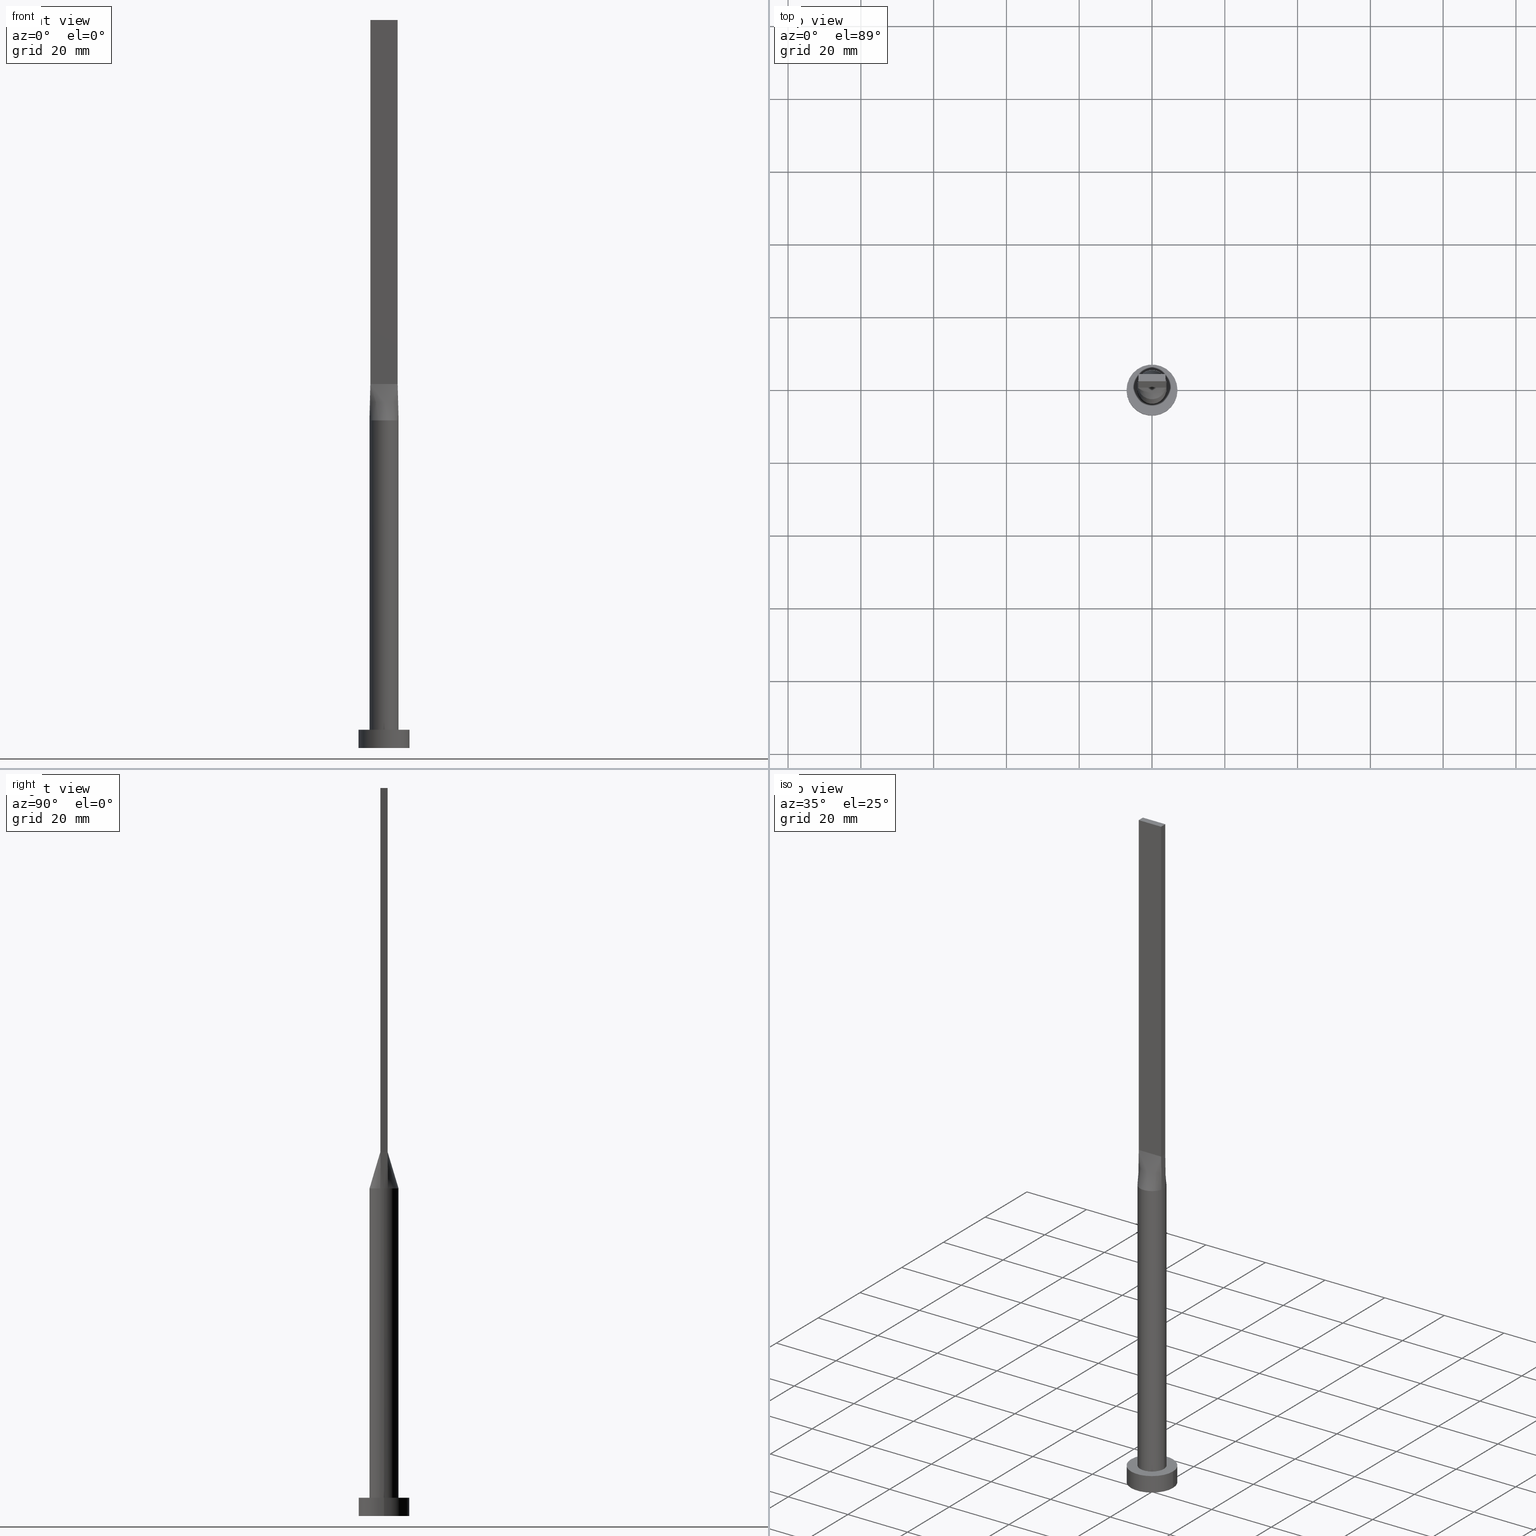
[diagram: canonical four-view strip — front | top / right | iso, engineering-drawing reading convention]
A machine part, canonical four-view strip (front | top / right | iso — engineering-drawing reading convention). The complete STEP part file that produces these views, byte-faithful:
ISO-10303-21;
HEADER;
FILE_DESCRIPTION (( 'STEP AP203' ),
    '1' );
FILE_NAME ('5dbc.STEP',
    '2023-02-13T09:35:49',
    ( '' ),
    ( '' ),
    'SwSTEP 2.0',
    'SolidWorks 2019',
    '' );
FILE_SCHEMA (( 'CONFIG_CONTROL_DESIGN' ));
ENDSEC;

DATA;
#1 = CARTESIAN_POINT ( 'NONE',  ( 1.562500000000001332, -0.9999999999999995559, 100.0000000000000000 ) ) ;
#2 = ORIENTED_EDGE ( 'NONE', *, *, #393, .F. ) ;
#3 = CC_DESIGN_PERSON_AND_ORGANIZATION_ASSIGNMENT ( #258, #32, ( #243 ) ) ;
#4 = CC_DESIGN_APPROVAL ( #565, ( #577 ) ) ;
#5 = CARTESIAN_POINT ( 'NONE',  ( -0.6249999999999982236, -0.9999999999999993339, 100.0000000000000142 ) ) ;
#6 = CARTESIAN_POINT ( 'NONE',  ( -3.437500000000000000, 1.000000000000000000, 100.0000000000000000 ) ) ;
#7 = CARTESIAN_POINT ( 'NONE',  ( 4.000000000000000000, -0.3494497975066829798, 90.00000000000001421 ) ) ;
#8 = CARTESIAN_POINT ( 'NONE',  ( 3.865244591400370577, -1.030732999276501527, 90.00000000000001421 ) ) ;
#9 = CARTESIAN_POINT ( 'NONE',  ( 3.653499896451231521, 1.673258289339057958, 90.00000000000001421 ) ) ;
#10 = CARTESIAN_POINT ( 'NONE',  ( 3.437499999999999556, 1.000000000000000000, 100.0000000000000000 ) ) ;
#11 = CARTESIAN_POINT ( 'NONE',  ( -3.267840578657194239, 2.338604872288698289, 90.00000000000000000 ) ) ;
#12 = AXIS2_PLACEMENT_3D ( 'NONE', #299, #159, #514 ) ;
#13 = EDGE_CURVE ( 'NONE', #459, #42, #229, .T. ) ;
#14 = DIRECTION ( 'NONE',  ( -1.000000000000000000, 0.000000000000000000, 0.000000000000000000 ) ) ;
#15 = ORIENTED_EDGE ( 'NONE', *, *, #520, .F. ) ;
#16 = CARTESIAN_POINT ( 'NONE',  ( 3.999999999999999112, 0.3494497975066819251, 90.00000000000001421 ) ) ;
#17 = CARTESIAN_POINT ( 'NONE',  ( 1.023074425454087999, 3.898373771260456255, 90.00000000000001421 ) ) ;
#18 = EDGE_LOOP ( 'NONE', ( #81, #169, #391, #218 ) ) ;
#19 = MECHANICAL_CONTEXT ( 'NONE', #477, 'mechanical' ) ;
#20 = DIRECTION ( 'NONE',  ( -1.000000000000000000, 0.000000000000000000, 0.000000000000000000 ) ) ;
#21 = CC_DESIGN_DATE_AND_TIME_ASSIGNMENT ( #521, #120, ( #577 ) ) ;
#22 = DIRECTION ( 'NONE',  ( -0.000000000000000000, -0.000000000000000000, -1.000000000000000000 ) ) ;
#23 = DIRECTION ( 'NONE',  ( -0.000000000000000000, -0.000000000000000000, -1.000000000000000000 ) ) ;
#24 = APPROVAL_PERSON_ORGANIZATION ( #244, #268, #109 ) ;
#25 = LINE ( 'NONE', #383, #283 ) ;
#26 = DIRECTION ( 'NONE',  ( 8.673617379884035472E-17, 1.000000000000000000, -0.000000000000000000 ) ) ;
#27 = ORIENTED_EDGE ( 'NONE', *, *, #265, .T. ) ;
#28 = LINE ( 'NONE', #290, #60 ) ;
#29 = EDGE_CURVE ( 'NONE', #459, #220, #182, .T. ) ;
#30 = ORIENTED_EDGE ( 'NONE', *, *, #486, .F. ) ;
#31 = CC_DESIGN_APPROVAL ( #571, ( #86 ) ) ;
#32 = PERSON_AND_ORGANIZATION_ROLE ( 'design_supplier' ) ;
#33 = FACE_OUTER_BOUND ( 'NONE', #58, .T. ) ;
#34 = EDGE_LOOP ( 'NONE', ( #419, #519 ) ) ;
#35 = CARTESIAN_POINT ( 'NONE',  ( 0.000000000000000000, 0.000000000000000000, 200.0000000000000000 ) ) ;
#36 = CARTESIAN_POINT ( 'NONE',  ( 0.000000000000000000, 0.000000000000000000, 0.000000000000000000 ) ) ;
#37 = EDGE_CURVE ( 'NONE', #479, #254, #356, .T. ) ;
#38 = DIRECTION ( 'NONE',  ( 0.01149316269309400701, -0.003064843384824952107, 0.9999292544707033548 ) ) ;
#39 = VERTEX_POINT ( 'NONE', #175 ) ;
#40 = CIRCLE ( 'NONE', #415, 4.000000000000000000 ) ;
#41 = DIRECTION ( 'NONE',  ( 0.000000000000000000, 0.000000000000000000, 1.000000000000000000 ) ) ;
#42 = VERTEX_POINT ( 'NONE', #354 ) ;
#43 = CARTESIAN_POINT ( 'NONE',  ( -3.864939758404985604, -1.030650602241328206, 90.00000000000001421 ) ) ;
#44 = ORIENTED_EDGE ( 'NONE', *, *, #261, .T. ) ;
#45 = CARTESIAN_POINT ( 'NONE',  ( 1.250000000000001554, -0.9999999999999995559, 100.0000000000000000 ) ) ;
#46 = CARTESIAN_POINT ( 'NONE',  ( 0.6249999999999993339, 1.000000000000000000, 100.0000000000000142 ) ) ;
#47 = ADVANCED_FACE ( 'NONE', ( #530 ), #128, .T. ) ;
#48 = AXIS2_PLACEMENT_3D ( 'NONE', #313, #41, #311 ) ;
#49 = DIRECTION ( 'NONE',  ( 1.000000000000000000, 0.000000000000000000, 0.000000000000000000 ) ) ;
#50 = CARTESIAN_POINT ( 'NONE',  ( 3.750000000000000000, 1.000000000000000000, 200.0000000000000000 ) ) ;
#51 = CARTESIAN_POINT ( 'NONE',  ( 2.346407003458400808, 3.270103945996944983, 89.99999999999998579 ) ) ;
#52 = CARTESIAN_POINT ( 'NONE',  ( -1.023074425454088221, 3.898373771260455811, 90.00000000000001421 ) ) ;
#53 = AXIS2_PLACEMENT_3D ( 'NONE', #36, #395, #575 ) ;
#54 = ORIENTED_EDGE ( 'NONE', *, *, #250, .T. ) ;
#55 = ADVANCED_FACE ( 'NONE', ( #454 ), #97, .F. ) ;
#56 = CARTESIAN_POINT ( 'NONE',  ( -4.000000000000000000, -2.459132308497027359E-16, 90.00000000000001421 ) ) ;
#57 = CARTESIAN_POINT ( 'NONE',  ( 3.009488128496037085, 2.672487015486669115, 90.00000000000000000 ) ) ;
#58 = EDGE_LOOP ( 'NONE', ( #216, #537, #312, #476, #445 ) ) ;
#59 = ADVANCED_FACE ( 'NONE', ( #548 ), #373, .F. ) ;
#60 = VECTOR ( 'NONE', #468, 1000.000000000000114 ) ;
#61 = FACE_OUTER_BOUND ( 'NONE', #399, .T. ) ;
#62 = VERTEX_POINT ( 'NONE', #501 ) ;
#63 = DIRECTION ( 'NONE',  ( -1.000000000000000000, 0.000000000000000000, 0.000000000000000000 ) ) ;
#64 = VERTEX_POINT ( 'NONE', #8 ) ;
#65 = CARTESIAN_POINT ( 'NONE',  ( 3.749999999999999556, 0.3333333333333336479, 100.0000000000000000 ) ) ;
#66 = DIRECTION ( 'NONE',  ( 0.000000000000000000, 0.000000000000000000, 1.000000000000000000 ) ) ;
#67 = DATE_TIME_ROLE ( 'creation_date' ) ;
#68 = LINE ( 'NONE', #245, #480 ) ;
#69 = LINE ( 'NONE', #378, #305 ) ;
#70 = AXIS2_PLACEMENT_3D ( 'NONE', #145, #102, #237 ) ;
#71 = APPROVAL_DATE_TIME ( #172, #565 ) ;
#72 = LINE ( 'NONE', #294, #409 ) ;
#73 = CARTESIAN_POINT ( 'NONE',  ( -3.750000000000000000, 1.000000000000000000, 100.0000000000000000 ) ) ;
#74 = ORIENTED_EDGE ( 'NONE', *, *, #199, .T. ) ;
#75 = CIRCLE ( 'NONE', #516, 4.000000000000000000 ) ;
#76 = DIRECTION ( 'NONE',  ( -1.000000000000000000, -0.000000000000000000, -0.000000000000000000 ) ) ;
#77 = EDGE_CURVE ( 'NONE', #308, #510, #449, .T. ) ;
#78 = DIRECTION ( 'NONE',  ( 1.000000000000000000, 0.000000000000000000, 0.000000000000000000 ) ) ;
#79 = CIRCLE ( 'NONE', #348, 4.000000000000000000 ) ;
#80 = CARTESIAN_POINT ( 'NONE',  ( 4.000000000000000000, -1.256865613583667397E-17, 90.00000000000001421 ) ) ;
#81 = ORIENTED_EDGE ( 'NONE', *, *, #496, .T. ) ;
#82 = EDGE_CURVE ( 'NONE', #39, #180, #151, .T. ) ;
#83 = CARTESIAN_POINT ( 'NONE',  ( -2.499999999999998668, -0.9999999999999991118, 100.0000000000000000 ) ) ;
#84 = EDGE_LOOP ( 'NONE', ( #416, #119, #171, #44 ) ) ;
#85 = CIRCLE ( 'NONE', #224, 4.000000000000000000 ) ;
#86 = PRODUCT_DEFINITION ( 'NEZN�M�', '', #243, #380 ) ;
#87 = CARTESIAN_POINT ( 'NONE',  ( -3.750000000000000000, -0.9999999999999991118, 100.0000000000000000 ) ) ;
#88 = EDGE_LOOP ( 'NONE', ( #267, #191 ) ) ;
#89 = CARTESIAN_POINT ( 'NONE',  ( -3.865236553917747120, 1.030730781768519622, 90.00000000000001421 ) ) ;
#90 = CARTESIAN_POINT ( 'NONE',  ( -3.125000000000000000, 1.000000000000000000, 100.0000000000000000 ) ) ;
#91 = AXIS2_PLACEMENT_3D ( 'NONE', #452, #165, #337 ) ;
#92 = CARTESIAN_POINT ( 'NONE',  ( 3.953459813730019423, -0.6987003947724502728, 89.99999999999998579 ) ) ;
#93 = ADVANCED_FACE ( 'NONE', ( #61 ), #352, .T. ) ;
#94 = FACE_OUTER_BOUND ( 'NONE', #34, .T. ) ;
#95 =( GEOMETRIC_REPRESENTATION_CONTEXT ( 3 ) GLOBAL_UNCERTAINTY_ASSIGNED_CONTEXT ( ( #555 ) ) GLOBAL_UNIT_ASSIGNED_CONTEXT ( ( #158, #552, #201 ) ) REPRESENTATION_CONTEXT ( 'NONE', 'WORKASPACE' ) );
#96 = CARTESIAN_POINT ( 'NONE',  ( -0.3124999999999982236, -0.9999999999999993339, 100.0000000000000142 ) ) ;
#97 = PLANE ( 'NONE',  #328 ) ;
#98 = CARTESIAN_POINT ( 'NONE',  ( 1.940702937457743582, 3.532374760555930582, 90.00000000000001421 ) ) ;
#99 = DIRECTION ( 'NONE',  ( 0.000000000000000000, -1.000000000000000000, 0.000000000000000000 ) ) ;
#100 = ORIENTED_EDGE ( 'NONE', *, *, #493, .T. ) ;
#101 = CARTESIAN_POINT ( 'NONE',  ( -1.023074425454088221, 3.898373771260455811, 90.00000000000001421 ) ) ;
#102 = DIRECTION ( 'NONE',  ( -0.000000000000000000, -0.000000000000000000, -1.000000000000000000 ) ) ;
#103 = EDGE_LOOP ( 'NONE', ( #579, #371, #534, #288 ) ) ;
#104 = CARTESIAN_POINT ( 'NONE',  ( 3.953459813730020311, 0.6987003947724492736, 90.00000000000002842 ) ) ;
#105 = VECTOR ( 'NONE', #563, 1000.000000000000000 ) ;
#106 = B_SPLINE_SURFACE_WITH_KNOTS ( 'NONE', 3, 1, ( 
 ( #43, #87 ),
 ( #217, #488 ),
 ( #259, #388 ),
 ( #353, #83 ),
 ( #437, #529 ),
 ( #170, #127 ),
 ( #350, #124 ),
 ( #499, #5 ),
 ( #363, #96 ),
 ( #275, #411 ),
 ( #184, #460 ),
 ( #272, #45 ),
 ( #453, #1 ),
 ( #278, #539 ),
 ( #143, #413 ),
 ( #544, #321 ),
 ( #457, #402 ),
 ( #450, #181 ) ),
 .UNSPECIFIED., .F., .F., .F.,
 ( 4, 2, 2, 2, 2, 2, 2, 2, 4 ),
 ( 2, 2 ),
 ( 0.000000000000000000, 0.1250000000000000000, 0.2500000000000000000, 0.3750000000000000000, 0.5000000000000000000, 0.6250000000000000000, 0.7500000000000000000, 0.8750000000000000000, 1.000000000000000000 ),
 ( 0.000000000000000000, 1.000000000000000000 ),
 .UNSPECIFIED. ) ;
#107 = DIRECTION ( 'NONE',  ( 0.000000000000000000, 0.000000000000000000, 1.000000000000000000 ) ) ;
#108 = EDGE_LOOP ( 'NONE', ( #15, #122, #436, #532, #314, #27 ) ) ;
#109 = APPROVAL_ROLE ( '' ) ;
#110 = DIRECTION ( 'NONE',  ( 1.000000000000000000, 0.000000000000000000, 0.000000000000000000 ) ) ;
#111 = AXIS2_PLACEMENT_3D ( 'NONE', #50, #99, #148 ) ;
#112 = COORDINATED_UNIVERSAL_TIME_OFFSET ( 1, 0, .AHEAD. ) ;
#113 = CARTESIAN_POINT ( 'NONE',  ( 0.000000000000000000, 0.000000000000000000, 90.00000000000001421 ) ) ;
#114 = APPLICATION_PROTOCOL_DEFINITION ( 'international standard', 'config_control_design', 1994, #277 ) ;
#115 = LINE ( 'NONE', #343, #341 ) ;
#116 = VECTOR ( 'NONE', #346, 1000.000000000000000 ) ;
#117 = CARTESIAN_POINT ( 'NONE',  ( -7.000000000000000000, 0.000000000000000000, 5.000000000000000000 ) ) ;
#118 = CARTESIAN_POINT ( 'NONE',  ( 0.000000000000000000, 0.000000000000000000, 5.000000000000000000 ) ) ;
#119 = ORIENTED_EDGE ( 'NONE', *, *, #558, .F. ) ;
#120 = DATE_TIME_ROLE ( 'classification_date' ) ;
#121 = CARTESIAN_POINT ( 'NONE',  ( -3.953459813730020311, -0.6987003947724488295, 90.00000000000002842 ) ) ;
#122 = ORIENTED_EDGE ( 'NONE', *, *, #291, .F. ) ;
#123 = APPROVAL_ROLE ( '' ) ;
#124 = CARTESIAN_POINT ( 'NONE',  ( -1.249999999999998446, -0.9999999999999993339, 100.0000000000000142 ) ) ;
#125 = LOCAL_TIME ( 10, 35, 49.00000000000000000, #507 ) ;
#126 = EDGE_LOOP ( 'NONE', ( #131, #167, #153, #483 ) ) ;
#127 = CARTESIAN_POINT ( 'NONE',  ( -1.562499999999998890, -0.9999999999999993339, 100.0000000000000142 ) ) ;
#128 = CYLINDRICAL_SURFACE ( 'NONE', #70, 7.000000000000000000 ) ;
#129 = VECTOR ( 'NONE', #369, 1000.000000000000000 ) ;
#130 = DIRECTION ( 'NONE',  ( 0.000000000000000000, 0.000000000000000000, 1.000000000000000000 ) ) ;
#131 = ORIENTED_EDGE ( 'NONE', *, *, #82, .T. ) ;
#132 = EDGE_CURVE ( 'NONE', #489, #220, #79, .T. ) ;
#133 = MANIFOLD_SOLID_BREP ( 'P�idat vysunut�m5', #249 ) ;
#134 = DIRECTION ( 'NONE',  ( 1.000000000000000000, 0.000000000000000000, -0.000000000000000000 ) ) ;
#135 = ORIENTED_EDGE ( 'NONE', *, *, #291, .T. ) ;
#136 = VECTOR ( 'NONE', #22, 1000.000000000000000 ) ;
#137 = ADVANCED_FACE ( 'NONE', ( #94 ), #273, .F. ) ;
#138 = CARTESIAN_POINT ( 'NONE',  ( -3.781952206537765537, 1.341853921743403788, 90.00000000000001421 ) ) ;
#139 = CARTESIAN_POINT ( 'NONE',  ( 2.187499999999999556, 1.000000000000000000, 100.0000000000000000 ) ) ;
#140 = CARTESIAN_POINT ( 'NONE',  ( 4.000000000000000000, 4.898587196589412829E-16, 5.000000000000000000 ) ) ;
#141 = CARTESIAN_POINT ( 'NONE',  ( -1.562500000000000444, 1.000000000000000000, 100.0000000000000000 ) ) ;
#142 = AXIS2_PLACEMENT_3D ( 'NONE', #336, #107, #339 ) ;
#143 = CARTESIAN_POINT ( 'NONE',  ( 3.267840578657194239, -2.338604872288699177, 90.00000000000000000 ) ) ;
#144 = ADVANCED_FACE ( 'NONE', ( #296 ), #464, .T. ) ;
#145 = CARTESIAN_POINT ( 'NONE',  ( 0.000000000000000000, 0.000000000000000000, 5.000000000000000000 ) ) ;
#146 = CC_DESIGN_SECURITY_CLASSIFICATION ( #577, ( #243 ) ) ;
#147 = CARTESIAN_POINT ( 'NONE',  ( 0.000000000000000000, 0.000000000000000000, 5.000000000000000000 ) ) ;
#148 = DIRECTION ( 'NONE',  ( 0.000000000000000000, -0.000000000000000000, -1.000000000000000000 ) ) ;
#149 = EDGE_LOOP ( 'NONE', ( #351, #431 ) ) ;
#150 = LINE ( 'NONE', #505, #361 ) ;
#151 = LINE ( 'NONE', #226, #129 ) ;
#152 = PRODUCT_RELATED_PRODUCT_CATEGORY ( 'detail', '', ( #334 ) ) ;
#153 = ORIENTED_EDGE ( 'NONE', *, *, #541, .F. ) ;
#154 = LINE ( 'NONE', #559, #157 ) ;
#155 = CARTESIAN_POINT ( 'NONE',  ( 3.750000000000000000, -0.9999999999999997780, 100.0000000000000000 ) ) ;
#156 = ORIENTED_EDGE ( 'NONE', *, *, #29, .F. ) ;
#157 = VECTOR ( 'NONE', #235, 1000.000000000000000 ) ;
#158 =( LENGTH_UNIT ( ) NAMED_UNIT ( * ) SI_UNIT ( .MILLI., .METRE. ) );
#159 = DIRECTION ( 'NONE',  ( 0.000000000000000000, 0.000000000000000000, 1.000000000000000000 ) ) ;
#160 = DIRECTION ( 'NONE',  ( -0.000000000000000000, -0.000000000000000000, -1.000000000000000000 ) ) ;
#161 = DIRECTION ( 'NONE',  ( 1.000000000000000000, 0.000000000000000000, 0.000000000000000000 ) ) ;
#162 = DIRECTION ( 'NONE',  ( -0.000000000000000000, -0.000000000000000000, -1.000000000000000000 ) ) ;
#163 = EDGE_CURVE ( 'NONE', #254, #479, #550, .T. ) ;
#164 = APPROVAL_ROLE ( '' ) ;
#165 = DIRECTION ( 'NONE',  ( 0.000000000000000000, 0.000000000000000000, 1.000000000000000000 ) ) ;
#166 = AXIS2_PLACEMENT_3D ( 'NONE', #266, #398, #578 ) ;
#167 = ORIENTED_EDGE ( 'NONE', *, *, #261, .F. ) ;
#168 = FACE_OUTER_BOUND ( 'NONE', #234, .T. ) ;
#169 = ORIENTED_EDGE ( 'NONE', *, *, #186, .F. ) ;
#170 = CARTESIAN_POINT ( 'NONE',  ( -2.346407003458402141, -3.270103945996943651, 89.99999999999998579 ) ) ;
#171 = ORIENTED_EDGE ( 'NONE', *, *, #333, .F. ) ;
#172 = DATE_AND_TIME ( #566, #253 ) ;
#173 = LINE ( 'NONE', #73, #535 ) ;
#174 = CC_DESIGN_APPROVAL ( #268, ( #243 ) ) ;
#175 = CARTESIAN_POINT ( 'NONE',  ( -3.750000000000000000, 1.000000000000000000, 100.0000000000000000 ) ) ;
#176 = CARTESIAN_POINT ( 'NONE',  ( -3.750000000000000000, 1.000000000000000000, 200.0000000000000000 ) ) ;
#177 = ORIENTED_EDGE ( 'NONE', *, *, #37, .T. ) ;
#178 = DATE_AND_TIME ( #304, #424 ) ;
#179 = CARTESIAN_POINT ( 'NONE',  ( -3.749999999999999556, 0.3333333333333337034, 100.0000000000000000 ) ) ;
#180 = VERTEX_POINT ( 'NONE', #560 ) ;
#181 = CARTESIAN_POINT ( 'NONE',  ( 3.750000000000000000, -0.9999999999999997780, 100.0000000000000000 ) ) ;
#182 = LINE ( 'NONE', #256, #279 ) ;
#183 = VECTOR ( 'NONE', #38, 1000.000000000000114 ) ;
#184 = CARTESIAN_POINT ( 'NONE',  ( 1.023074425454087555, -3.898373771260455811, 90.00000000000001421 ) ) ;
#185 = CARTESIAN_POINT ( 'NONE',  ( 0.000000000000000000, 0.000000000000000000, 5.000000000000000000 ) ) ;
#186 = EDGE_CURVE ( 'NONE', #300, #510, #72, .T. ) ;
#187 = DIRECTION ( 'NONE',  ( 1.000000000000000000, 0.000000000000000000, 0.000000000000000000 ) ) ;
#188 = CARTESIAN_POINT ( 'NONE',  ( 0.3124999999999993339, 1.000000000000000000, 100.0000000000000142 ) ) ;
#189 = CARTESIAN_POINT ( 'NONE',  ( 0.5121855420560009753, 4.000000000000000888, 90.00000000000002842 ) ) ;
#190 = CARTESIAN_POINT ( 'NONE',  ( 3.807469879202492358, 1.015325301120664436, 95.00000000000000000 ) ) ;
#191 = ORIENTED_EDGE ( 'NONE', *, *, #132, .F. ) ;
#192 = CARTESIAN_POINT ( 'NONE',  ( 3.267840578657193795, 2.338604872288698289, 89.99999999999998579 ) ) ;
#193 = CC_DESIGN_PERSON_AND_ORGANIZATION_ASSIGNMENT ( #338, #205, ( #334 ) ) ;
#194 = CARTESIAN_POINT ( 'NONE',  ( 3.124999999999999112, 1.000000000000000000, 100.0000000000000000 ) ) ;
#195 = CARTESIAN_POINT ( 'NONE',  ( 3.749999999999999556, -0.3333333333333329818, 100.0000000000000000 ) ) ;
#196 = CARTESIAN_POINT ( 'NONE',  ( 1.562499999999999112, 1.000000000000000000, 100.0000000000000142 ) ) ;
#197 = EDGE_LOOP ( 'NONE', ( #310, #362, #260, #54 ) ) ;
#198 = DIRECTION ( 'NONE',  ( 0.000000000000000000, 0.000000000000000000, 1.000000000000000000 ) ) ;
#199 = EDGE_CURVE ( 'NONE', #403, #300, #25, .T. ) ;
#200 = AXIS2_PLACEMENT_3D ( 'NONE', #207, #162, #20 ) ;
#201 =( NAMED_UNIT ( * ) SI_UNIT ( $, .STERADIAN. ) SOLID_ANGLE_UNIT ( ) );
#202 = DIRECTION ( 'NONE',  ( 0.000000000000000000, 0.000000000000000000, 1.000000000000000000 ) ) ;
#203 = DATE_AND_TIME ( #469, #451 ) ;
#204 = DIRECTION ( 'NONE',  ( 0.000000000000000000, 1.000000000000000000, 0.000000000000000000 ) ) ;
#205 = PERSON_AND_ORGANIZATION_ROLE ( 'design_owner' ) ;
#206 = LINE ( 'NONE', #239, #471 ) ;
#207 = CARTESIAN_POINT ( 'NONE',  ( 0.000000000000000000, 0.000000000000000000, 90.00000000000001421 ) ) ;
#208 = ORIENTED_EDGE ( 'NONE', *, *, #132, .T. ) ;
#209 = CALENDAR_DATE ( 2023, 13, 2 ) ;
#210 = LINE ( 'NONE', #444, #183 ) ;
#211 = EDGE_LOOP ( 'NONE', ( #135, #374, #389, #284, #358 ) ) ;
#212 = CARTESIAN_POINT ( 'NONE',  ( 0.000000000000000000, 0.000000000000000000, 90.00000000000001421 ) ) ;
#213 = APPROVAL_STATUS ( 'not_yet_approved' ) ;
#214 = DIRECTION ( 'NONE',  ( -0.000000000000000000, 0.000000000000000000, -1.000000000000000000 ) ) ;
#215 = CIRCLE ( 'NONE', #48, 7.000000000000000000 ) ;
#216 = ORIENTED_EDGE ( 'NONE', *, *, #236, .T. ) ;
#217 = CARTESIAN_POINT ( 'NONE',  ( -3.781952206537765981, -1.341853921743402900, 89.99999999999998579 ) ) ;
#218 = ORIENTED_EDGE ( 'NONE', *, *, #558, .T. ) ;
#219 = DIRECTION ( 'NONE',  ( 0.000000000000000000, 0.000000000000000000, 1.000000000000000000 ) ) ;
#220 = VERTEX_POINT ( 'NONE', #564 ) ;
#221 = FACE_OUTER_BOUND ( 'NONE', #211, .T. ) ;
#222 = CARTESIAN_POINT ( 'NONE',  ( -3.781952206537765537, 1.341853921743403788, 90.00000000000001421 ) ) ;
#223 = CC_DESIGN_PERSON_AND_ORGANIZATION_ASSIGNMENT ( #439, #433, ( #243 ) ) ;
#224 = AXIS2_PLACEMENT_3D ( 'NONE', #113, #66, #241 ) ;
#225 = CARTESIAN_POINT ( 'NONE',  ( 3.749999999999999556, -0.6666666666666664076, 100.0000000000000000 ) ) ;
#226 = CARTESIAN_POINT ( 'NONE',  ( -3.750000000000000000, 1.000000000000000000, 100.0000000000000000 ) ) ;
#227 = EDGE_CURVE ( 'NONE', #504, #479, #287, .T. ) ;
#228 = CARTESIAN_POINT ( 'NONE',  ( 1.023074425454087999, 3.898373771260456255, 90.00000000000001421 ) ) ;
#229 = CIRCLE ( 'NONE', #392, 4.000000000000000000 ) ;
#230 = CARTESIAN_POINT ( 'NONE',  ( -0.6250000000000006661, 1.000000000000000000, 100.0000000000000000 ) ) ;
#231 = ADVANCED_FACE ( 'NONE', ( #508 ), #330, .F. ) ;
#232 = CARTESIAN_POINT ( 'NONE',  ( -3.009488128496037529, 2.672487015486668671, 90.00000000000001421 ) ) ;
#233 = CARTESIAN_POINT ( 'NONE',  ( 1.249999999999999334, 1.000000000000000000, 100.0000000000000142 ) ) ;
#234 = EDGE_LOOP ( 'NONE', ( #492, #523, #401, #74 ) ) ;
#235 = DIRECTION ( 'NONE',  ( -1.000000000000000000, 0.000000000000000000, 0.000000000000000000 ) ) ;
#236 = EDGE_CURVE ( 'NONE', #456, #459, #370, .T. ) ;
#237 = DIRECTION ( 'NONE',  ( -1.000000000000000000, 0.000000000000000000, 0.000000000000000000 ) ) ;
#238 = DIRECTION ( 'NONE',  ( 0.000000000000000000, 0.000000000000000000, 1.000000000000000000 ) ) ;
#239 = CARTESIAN_POINT ( 'NONE',  ( -3.750000000000000000, -0.9999999999999991118, 200.0000000000000000 ) ) ;
#240 = CARTESIAN_POINT ( 'NONE',  ( 3.864939758404985160, 1.030650602241328873, 90.00000000000001421 ) ) ;
#241 = DIRECTION ( 'NONE',  ( 1.000000000000000000, -6.217248937900876626E-15, 0.000000000000000000 ) ) ;
#242 = ADVANCED_FACE ( 'NONE', ( #382 ), #385, .T. ) ;
#243 = PRODUCT_DEFINITION_FORMATION_WITH_SPECIFIED_SOURCE ( 'LIBOVOLN�', '', #334, .NOT_KNOWN. ) ;
#244 = PERSON_AND_ORGANIZATION ( #572, #285 ) ;
#245 = CARTESIAN_POINT ( 'NONE',  ( -3.750000000000000000, -0.9999999999999991118, 100.0000000000000000 ) ) ;
#246 = CARTESIAN_POINT ( 'NONE',  ( -3.750000000000000000, 1.000000000000000000, 200.0000000000000000 ) ) ;
#247 = DIRECTION ( 'NONE',  ( -0.01149316269309400701, -0.003064843384825017159, -0.9999292544707033548 ) ) ;
#248 = VERTEX_POINT ( 'NONE', #155 ) ;
#249 = CLOSED_SHELL ( 'NONE', ( #242, #47, #144, #270, #137, #396, #455, #528, #340, #93, #59, #306, #231, #55, #368 ) ) ;
#250 = EDGE_CURVE ( 'NONE', #180, #42, #69, .T. ) ;
#251 = CARTESIAN_POINT ( 'NONE',  ( 0.000000000000000000, 0.000000000000000000, 5.000000000000000000 ) ) ;
#252 = CYLINDRICAL_SURFACE ( 'NONE', #166, 4.000000000000000000 ) ;
#253 = LOCAL_TIME ( 10, 35, 49.00000000000000000, #442 ) ;
#254 = VERTEX_POINT ( 'NONE', #515 ) ;
#255 = DIRECTION ( 'NONE',  ( 1.000000000000000000, 0.000000000000000000, 0.000000000000000000 ) ) ;
#256 = CARTESIAN_POINT ( 'NONE',  ( -4.000000000000000000, 0.000000000000000000, 90.00000000000001421 ) ) ;
#257 = EDGE_CURVE ( 'NONE', #429, #39, #115, .T. ) ;
#258 = PERSON_AND_ORGANIZATION ( #572, #285 ) ;
#259 = CARTESIAN_POINT ( 'NONE',  ( -3.653499896451231521, -1.673258289339057514, 90.00000000000001421 ) ) ;
#260 = ORIENTED_EDGE ( 'NONE', *, *, #301, .F. ) ;
#261 = EDGE_CURVE ( 'NONE', #549, #180, #206, .T. ) ;
#262 = APPROVAL_DATE_TIME ( #178, #268 ) ;
#263 = CARTESIAN_POINT ( 'NONE',  ( -3.750000000000000000, 1.000000000000000000, 200.0000000000000000 ) ) ;
#264 = EDGE_LOOP ( 'NONE', ( #554, #568, #570, #326 ) ) ;
#265 = EDGE_CURVE ( 'NONE', #220, #489, #75, .T. ) ;
#266 = CARTESIAN_POINT ( 'NONE',  ( 0.000000000000000000, 0.000000000000000000, 90.00000000000001421 ) ) ;
#267 = ORIENTED_EDGE ( 'NONE', *, *, #265, .F. ) ;
#268 = APPROVAL ( #420, 'NEUR�EN�' ) ;
#269 = CARTESIAN_POINT ( 'NONE',  ( 3.865212754195084699, 1.030724393897464841, 90.00000000000001421 ) ) ;
#270 = ADVANCED_FACE ( 'NONE', ( #474, #421 ), #553, .T. ) ;
#271 = CARTESIAN_POINT ( 'NONE',  ( -1.940702937457743138, 3.532374760555930582, 90.00000000000001421 ) ) ;
#272 = CARTESIAN_POINT ( 'NONE',  ( 1.940702937457743360, -3.532374760555930582, 90.00000000000001421 ) ) ;
#273 = PLANE ( 'NONE',  #91 ) ;
#274 = EDGE_CURVE ( 'NONE', #64, #248, #28, .T. ) ;
#275 = CARTESIAN_POINT ( 'NONE',  ( 0.5121855420560003092, -3.999999999999999112, 90.00000000000001421 ) ) ;
#276 = CARTESIAN_POINT ( 'NONE',  ( 3.653499896451231521, 1.673258289339057958, 90.00000000000001421 ) ) ;
#277 = APPLICATION_CONTEXT ( 'configuration controlled 3d designs of mechanical parts and assemblies' ) ;
#278 = CARTESIAN_POINT ( 'NONE',  ( 3.009488128496036641, -2.672487015486668671, 90.00000000000001421 ) ) ;
#279 = VECTOR ( 'NONE', #438, 1000.000000000000000 ) ;
#280 = CARTESIAN_POINT ( 'NONE',  ( -3.267840578657194239, 2.338604872288698289, 90.00000000000000000 ) ) ;
#281 = LINE ( 'NONE', #372, #387 ) ;
#282 = CARTESIAN_POINT ( 'NONE',  ( -0.5121855420560009753, 4.000000000000000888, 90.00000000000001421 ) ) ;
#283 = VECTOR ( 'NONE', #204, 1000.000000000000000 ) ;
#284 = ORIENTED_EDGE ( 'NONE', *, *, #496, .F. ) ;
#285 = ORGANIZATION ( 'NEUR�EN�', 'NEUR�EN�', '' ) ;
#286 = DATE_AND_TIME ( #513, #125 ) ;
#287 = LINE ( 'NONE', #556, #500 ) ;
#288 = ORIENTED_EDGE ( 'NONE', *, *, #163, .T. ) ;
#289 = APPROVAL_DATE_TIME ( #286, #571 ) ;
#290 = CARTESIAN_POINT ( 'NONE',  ( 3.807469879202492802, -1.015325301120664214, 95.00000000000000000 ) ) ;
#291 = EDGE_CURVE ( 'NONE', #64, #347, #85, .T. ) ;
#292 = AXIS2_PLACEMENT_3D ( 'NONE', #470, #472, #63 ) ;
#293 = PERSON_AND_ORGANIZATION ( #572, #285 ) ;
#294 = CARTESIAN_POINT ( 'NONE',  ( 3.750000000000000000, 1.000000000000000000, 200.0000000000000000 ) ) ;
#295 = CARTESIAN_POINT ( 'NONE',  ( 3.749999999999999556, 0.6666666666666668517, 100.0000000000000000 ) ) ;
#296 = FACE_OUTER_BOUND ( 'NONE', #103, .T. ) ;
#297 = CC_DESIGN_PERSON_AND_ORGANIZATION_ASSIGNMENT ( #345, #573, ( #577 ) ) ;
#298 = LINE ( 'NONE', #117, #136 ) ;
#299 = CARTESIAN_POINT ( 'NONE',  ( 0.000000000000000000, 0.000000000000000000, 90.00000000000001421 ) ) ;
#300 = VERTEX_POINT ( 'NONE', #423 ) ;
#301 = EDGE_CURVE ( 'NONE', #180, #248, #68, .T. ) ;
#302 = CARTESIAN_POINT ( 'NONE',  ( -3.750000000000000000, 1.000000000000000000, 100.0000000000000000 ) ) ;
#303 = DIRECTION ( 'NONE',  ( 0.000000000000000000, 0.000000000000000000, 1.000000000000000000 ) ) ;
#304 = CALENDAR_DATE ( 2023, 13, 2 ) ;
#305 = VECTOR ( 'NONE', #247, 1000.000000000000114 ) ;
#306 = ADVANCED_FACE ( 'NONE', ( #309 ), #574, .F. ) ;
#307 = DIRECTION ( 'NONE',  ( 1.000000000000000000, 0.000000000000000000, -0.000000000000000000 ) ) ;
#308 = VERTEX_POINT ( 'NONE', #446 ) ;
#309 = FACE_OUTER_BOUND ( 'NONE', #126, .T. ) ;
#310 = ORIENTED_EDGE ( 'NONE', *, *, #473, .T. ) ;
#311 = DIRECTION ( 'NONE',  ( 1.000000000000000000, 0.000000000000000000, 0.000000000000000000 ) ) ;
#312 = ORIENTED_EDGE ( 'NONE', *, *, #250, .F. ) ;
#313 = CARTESIAN_POINT ( 'NONE',  ( 0.000000000000000000, 0.000000000000000000, 5.000000000000000000 ) ) ;
#314 = ORIENTED_EDGE ( 'NONE', *, *, #29, .T. ) ;
#315 = ADVANCED_BREP_SHAPE_REPRESENTATION ( '5dbc', ( #133, #462 ), #95 ) ;
#316 = CC_DESIGN_DATE_AND_TIME_ASSIGNMENT ( #203, #67, ( #86 ) ) ;
#317 = CARTESIAN_POINT ( 'NONE',  ( -3.653499896451231521, 1.673258289339058180, 90.00000000000001421 ) ) ;
#318 = CARTESIAN_POINT ( 'NONE',  ( -3.009488128496037529, 2.672487015486668671, 90.00000000000001421 ) ) ;
#319 = CARTESIAN_POINT ( 'NONE',  ( 3.864939758404985160, -1.030650602241329539, 90.00000000000001421 ) ) ;
#320 = DIRECTION ( 'NONE',  ( 0.000000000000000000, 0.000000000000000000, 1.000000000000000000 ) ) ;
#321 = CARTESIAN_POINT ( 'NONE',  ( 3.125000000000000444, -0.9999999999999995559, 100.0000000000000000 ) ) ;
#322 = CARTESIAN_POINT ( 'NONE',  ( 3.750000000000000000, -0.9999999999999997780, 200.0000000000000000 ) ) ;
#323 = AXIS2_PLACEMENT_3D ( 'NONE', #251, #198, #430 ) ;
#324 = DIRECTION ( 'NONE',  ( 0.000000000000000000, 0.000000000000000000, 1.000000000000000000 ) ) ;
#325 = CARTESIAN_POINT ( 'NONE',  ( 3.864939758404985160, 1.030650602241329539, 90.00000000000001421 ) ) ;
#326 = ORIENTED_EDGE ( 'NONE', *, *, #186, .T. ) ;
#327 = CARTESIAN_POINT ( 'NONE',  ( 3.009488128496037085, 2.672487015486669115, 90.00000000000000000 ) ) ;
#328 = AXIS2_PLACEMENT_3D ( 'NONE', #322, #14, #461 ) ;
#329 = CARTESIAN_POINT ( 'NONE',  ( 2.346407003458400808, 3.270103945996944983, 89.99999999999998579 ) ) ;
#330 = PLANE ( 'NONE',  #379 ) ;
#331 = ORIENTED_EDGE ( 'NONE', *, *, #520, .T. ) ;
#332 = APPROVAL_PERSON_ORGANIZATION ( #384, #571, #164 ) ;
#333 = EDGE_CURVE ( 'NONE', #549, #403, #390, .T. ) ;
#334 = PRODUCT ( '5dbc', '5dbc', '', ( #19 ) ) ;
#335 = CARTESIAN_POINT ( 'NONE',  ( 0.000000000000000000, 0.000000000000000000, 0.000000000000000000 ) ) ;
#336 = CARTESIAN_POINT ( 'NONE',  ( 0.000000000000000000, 0.000000000000000000, 0.000000000000000000 ) ) ;
#337 = DIRECTION ( 'NONE',  ( 1.000000000000000000, 0.000000000000000000, -0.000000000000000000 ) ) ;
#338 = PERSON_AND_ORGANIZATION ( #572, #285 ) ;
#339 = DIRECTION ( 'NONE',  ( 1.000000000000000000, 0.000000000000000000, 0.000000000000000000 ) ) ;
#340 = ADVANCED_FACE ( 'NONE', ( #33 ), #576, .T. ) ;
#341 = VECTOR ( 'NONE', #518, 1000.000000000000000 ) ;
#342 = PERSON_AND_ORGANIZATION_ROLE ( 'creator' ) ;
#343 = CARTESIAN_POINT ( 'NONE',  ( -3.750000000000000000, 1.000000000000000000, 200.0000000000000000 ) ) ;
#344 = ORIENTED_EDGE ( 'NONE', *, *, #386, .F. ) ;
#345 = PERSON_AND_ORGANIZATION ( #572, #285 ) ;
#346 = DIRECTION ( 'NONE',  ( 1.000000000000000000, -8.673617379884035472E-17, 0.000000000000000000 ) ) ;
#347 = VERTEX_POINT ( 'NONE', #80 ) ;
#348 = AXIS2_PLACEMENT_3D ( 'NONE', #185, #320, #498 ) ;
#349 = SECURITY_CLASSIFICATION_LEVEL ( 'unclassified' ) ;
#350 = CARTESIAN_POINT ( 'NONE',  ( -1.940702937457744692, -3.532374760555929250, 90.00000000000001421 ) ) ;
#351 = ORIENTED_EDGE ( 'NONE', *, *, #410, .T. ) ;
#352 = B_SPLINE_SURFACE_WITH_KNOTS ( 'NONE', 3, 1, ( 
 ( #325, #366 ),
 ( #377, #10 ),
 ( #276, #194 ),
 ( #546, #406 ),
 ( #57, #139 ),
 ( #329, #196 ),
 ( #408, #233 ),
 ( #17, #46 ),
 ( #506, #188 ),
 ( #282, #543 ),
 ( #52, #230 ),
 ( #271, #418 ),
 ( #414, #141 ),
 ( #318, #540 ),
 ( #280, #495 ),
 ( #503, #90 ),
 ( #222, #6 ),
 ( #364, #412 ) ),
 .UNSPECIFIED., .F., .F., .F.,
 ( 4, 2, 2, 2, 2, 2, 2, 2, 4 ),
 ( 2, 2 ),
 ( 0.000000000000000000, 0.1250000000000000000, 0.2500000000000000000, 0.3750000000000000000, 0.5000000000000000000, 0.6250000000000000000, 0.7500000000000000000, 0.8750000000000000000, 1.000000000000000000 ),
 ( 0.000000000000000000, 1.000000000000000000 ),
 .UNSPECIFIED. ) ;
#353 = CARTESIAN_POINT ( 'NONE',  ( -3.267840578657194239, -2.338604872288696956, 89.99999999999998579 ) ) ;
#354 = CARTESIAN_POINT ( 'NONE',  ( -3.865220763612065902, -1.030726602927787949, 90.00000000000001421 ) ) ;
#355 = ORIENTED_EDGE ( 'NONE', *, *, #561, .F. ) ;
#356 = CIRCLE ( 'NONE', #53, 7.000000000000000000 ) ;
#357 = FACE_OUTER_BOUND ( 'NONE', #108, .T. ) ;
#358 = ORIENTED_EDGE ( 'NONE', *, *, #274, .F. ) ;
#359 = EDGE_CURVE ( 'NONE', #456, #39, #210, .T. ) ;
#360 = CARTESIAN_POINT ( 'NONE',  ( -0.5121855420560009753, 4.000000000000000888, 90.00000000000001421 ) ) ;
#361 = VECTOR ( 'NONE', #448, 1000.000000000000000 ) ;
#362 = ORIENTED_EDGE ( 'NONE', *, *, #274, .T. ) ;
#363 = CARTESIAN_POINT ( 'NONE',  ( -0.5121855420560018635, -4.000000000000000000, 90.00000000000002842 ) ) ;
#364 = CARTESIAN_POINT ( 'NONE',  ( -3.864939758404985604, 1.030650602241328428, 90.00000000000001421 ) ) ;
#365 = CARTESIAN_POINT ( 'NONE',  ( 7.000000000000000000, 8.572527594031473190E-16, 0.000000000000000000 ) ) ;
#366 = CARTESIAN_POINT ( 'NONE',  ( 3.750000000000000000, 1.000000000000000000, 100.0000000000000000 ) ) ;
#367 = CARTESIAN_POINT ( 'NONE',  ( -2.346407003458401253, 3.270103945996944095, 90.00000000000000000 ) ) ;
#368 = ADVANCED_FACE ( 'NONE', ( #168 ), #478, .T. ) ;
#369 = DIRECTION ( 'NONE',  ( 0.000000000000000000, -1.000000000000000000, 0.000000000000000000 ) ) ;
#370 = CIRCLE ( 'NONE', #12, 4.000000000000000000 ) ;
#371 = ORIENTED_EDGE ( 'NONE', *, *, #410, .F. ) ;
#372 = CARTESIAN_POINT ( 'NONE',  ( 3.750000000000000000, 1.000000000000000000, 100.0000000000000000 ) ) ;
#373 = PLANE ( 'NONE',  #111 ) ;
#374 = ORIENTED_EDGE ( 'NONE', *, *, #393, .T. ) ;
#375 = CARTESIAN_POINT ( 'NONE',  ( -3.750000000000000000, -0.9999999999999991118, 200.0000000000000000 ) ) ;
#376 = PRODUCT_DEFINITION_SHAPE ( 'NONE', 'NONE',  #86 ) ;
#377 = CARTESIAN_POINT ( 'NONE',  ( 3.781952206537764205, 1.341853921743403788, 89.99999999999998579 ) ) ;
#378 = CARTESIAN_POINT ( 'NONE',  ( -3.807469879202492802, -1.015325301120663548, 95.00000000000000000 ) ) ;
#379 = AXIS2_PLACEMENT_3D ( 'NONE', #562, #26, #512 ) ;
#380 = DESIGN_CONTEXT ( 'detailed design', #277, 'design' ) ;
#381 = CARTESIAN_POINT ( 'NONE',  ( 3.750000000000000000, 1.000000000000000000, 100.0000000000000000 ) ) ;
#382 = FACE_OUTER_BOUND ( 'NONE', #581, .T. ) ;
#383 = CARTESIAN_POINT ( 'NONE',  ( 3.750000000000000000, -0.9999999999999997780, 200.0000000000000000 ) ) ;
#384 = PERSON_AND_ORGANIZATION ( #572, #285 ) ;
#385 = CYLINDRICAL_SURFACE ( 'NONE', #200, 4.000000000000000000 ) ;
#386 = EDGE_CURVE ( 'NONE', #510, #39, #173, .T. ) ;
#387 = VECTOR ( 'NONE', #497, 1000.000000000000000 ) ;
#388 = CARTESIAN_POINT ( 'NONE',  ( -3.124999999999999112, -0.9999999999999991118, 100.0000000000000000 ) ) ;
#389 = ORIENTED_EDGE ( 'NONE', *, *, #77, .T. ) ;
#390 = LINE ( 'NONE', #482, #116 ) ;
#391 = ORIENTED_EDGE ( 'NONE', *, *, #199, .F. ) ;
#392 = AXIS2_PLACEMENT_3D ( 'NONE', #212, #303, #78 ) ;
#393 = EDGE_CURVE ( 'NONE', #347, #308, #509, .T. ) ;
#394 = CARTESIAN_POINT ( 'NONE',  ( -3.749999999999999556, -0.6666666666666658525, 100.0000000000000000 ) ) ;
#395 = DIRECTION ( 'NONE',  ( 0.000000000000000000, 0.000000000000000000, 1.000000000000000000 ) ) ;
#396 = ADVANCED_FACE ( 'NONE', ( #357 ), #252, .T. ) ;
#397 = APPROVAL_PERSON_ORGANIZATION ( #481, #565, #123 ) ;
#398 = DIRECTION ( 'NONE',  ( -0.000000000000000000, -0.000000000000000000, -1.000000000000000000 ) ) ;
#399 = EDGE_LOOP ( 'NONE', ( #100, #485, #344, #447 ) ) ;
#400 = CARTESIAN_POINT ( 'NONE',  ( -3.864939758404985160, 1.030650602241329317, 90.00000000000001421 ) ) ;
#401 = ORIENTED_EDGE ( 'NONE', *, *, #333, .T. ) ;
#402 = CARTESIAN_POINT ( 'NONE',  ( 3.437500000000000444, -0.9999999999999995559, 100.0000000000000000 ) ) ;
#403 = VERTEX_POINT ( 'NONE', #533 ) ;
#404 = CARTESIAN_POINT ( 'NONE',  ( 3.750000000000000000, -1.000000000000000000, 100.0000000000000000 ) ) ;
#405 = AXIS2_PLACEMENT_3D ( 'NONE', #147, #219, #49 ) ;
#406 = CARTESIAN_POINT ( 'NONE',  ( 2.499999999999999112, 1.000000000000000000, 100.0000000000000000 ) ) ;
#407 = CARTESIAN_POINT ( 'NONE',  ( 0.000000000000000000, 0.000000000000000000, 90.00000000000001421 ) ) ;
#408 = CARTESIAN_POINT ( 'NONE',  ( 1.940702937457743582, 3.532374760555930582, 90.00000000000001421 ) ) ;
#409 = VECTOR ( 'NONE', #428, 1000.000000000000000 ) ;
#410 = EDGE_CURVE ( 'NONE', #62, #504, #215, .T. ) ;
#411 = CARTESIAN_POINT ( 'NONE',  ( 0.3125000000000018319, -0.9999999999999995559, 100.0000000000000142 ) ) ;
#412 = CARTESIAN_POINT ( 'NONE',  ( -3.750000000000000000, 1.000000000000000000, 100.0000000000000000 ) ) ;
#413 = CARTESIAN_POINT ( 'NONE',  ( 2.500000000000000888, -0.9999999999999995559, 100.0000000000000000 ) ) ;
#414 = CARTESIAN_POINT ( 'NONE',  ( -2.346407003458401253, 3.270103945996944095, 90.00000000000000000 ) ) ;
#415 = AXIS2_PLACEMENT_3D ( 'NONE', #407, #324, #187 ) ;
#416 = ORIENTED_EDGE ( 'NONE', *, *, #301, .T. ) ;
#417 = APPROVAL_STATUS ( 'not_yet_approved' ) ;
#418 = CARTESIAN_POINT ( 'NONE',  ( -1.250000000000000444, 1.000000000000000000, 100.0000000000000000 ) ) ;
#419 = ORIENTED_EDGE ( 'NONE', *, *, #163, .F. ) ;
#420 = APPROVAL_STATUS ( 'not_yet_approved' ) ;
#421 = FACE_OUTER_BOUND ( 'NONE', #149, .T. ) ;
#422 = CARTESIAN_POINT ( 'NONE',  ( 3.750000000000000000, -0.9999999999999997780, 200.0000000000000000 ) ) ;
#423 = CARTESIAN_POINT ( 'NONE',  ( 3.750000000000000000, 1.000000000000000000, 200.0000000000000000 ) ) ;
#424 = LOCAL_TIME ( 10, 35, 49.00000000000000000, #517 ) ;
#425 = LINE ( 'NONE', #246, #490 ) ;
#426 = DIRECTION ( 'NONE',  ( 1.000000000000000000, -8.673617379884035472E-17, 0.000000000000000000 ) ) ;
#427 = DIRECTION ( 'NONE',  ( 0.000000000000000000, -1.000000000000000000, 0.000000000000000000 ) ) ;
#428 = DIRECTION ( 'NONE',  ( -0.000000000000000000, -0.000000000000000000, -1.000000000000000000 ) ) ;
#429 = VERTEX_POINT ( 'NONE', #176 ) ;
#430 = DIRECTION ( 'NONE',  ( 1.000000000000000000, 0.000000000000000000, -0.000000000000000000 ) ) ;
#431 = ORIENTED_EDGE ( 'NONE', *, *, #486, .T. ) ;
#432 = LOCAL_TIME ( 10, 35, 49.00000000000000000, #524 ) ;
#433 = PERSON_AND_ORGANIZATION_ROLE ( 'creator' ) ;
#434 = FACE_OUTER_BOUND ( 'NONE', #197, .T. ) ;
#435 = CC_DESIGN_PERSON_AND_ORGANIZATION_ASSIGNMENT ( #293, #342, ( #86 ) ) ;
#436 = ORIENTED_EDGE ( 'NONE', *, *, #473, .F. ) ;
#437 = CARTESIAN_POINT ( 'NONE',  ( -3.009488128496037529, -2.672487015486668227, 90.00000000000000000 ) ) ;
#438 = DIRECTION ( 'NONE',  ( -0.000000000000000000, -0.000000000000000000, -1.000000000000000000 ) ) ;
#439 = PERSON_AND_ORGANIZATION ( #572, #285 ) ;
#440 = CARTESIAN_POINT ( 'NONE',  ( -4.000000000000000000, 0.3494497975066826467, 90.00000000000001421 ) ) ;
#441 = ORIENTED_EDGE ( 'NONE', *, *, #493, .F. ) ;
#442 = COORDINATED_UNIVERSAL_TIME_OFFSET ( 1, 0, .AHEAD. ) ;
#443 = CIRCLE ( 'NONE', #405, 7.000000000000000000 ) ;
#444 = CARTESIAN_POINT ( 'NONE',  ( -3.807469879202492802, 1.015325301120663992, 95.00000000000000000 ) ) ;
#445 = ORIENTED_EDGE ( 'NONE', *, *, #359, .F. ) ;
#446 = CARTESIAN_POINT ( 'NONE',  ( 3.865212754195084699, 1.030724393897464841, 90.00000000000001421 ) ) ;
#447 = ORIENTED_EDGE ( 'NONE', *, *, #77, .F. ) ;
#448 = DIRECTION ( 'NONE',  ( -0.000000000000000000, -0.000000000000000000, -1.000000000000000000 ) ) ;
#449 = LINE ( 'NONE', #190, #475 ) ;
#450 = CARTESIAN_POINT ( 'NONE',  ( 3.864939758404985604, -1.030650602241328873, 90.00000000000001421 ) ) ;
#451 = LOCAL_TIME ( 10, 35, 49.00000000000000000, #112 ) ;
#452 = CARTESIAN_POINT ( 'NONE',  ( 0.000000000000000000, 0.000000000000000000, 0.000000000000000000 ) ) ;
#453 = CARTESIAN_POINT ( 'NONE',  ( 2.346407003458400364, -3.270103945996944095, 90.00000000000000000 ) ) ;
#454 = FACE_OUTER_BOUND ( 'NONE', #18, .T. ) ;
#455 = ADVANCED_FACE ( 'NONE', ( #434 ), #106, .T. ) ;
#456 = VERTEX_POINT ( 'NONE', #536 ) ;
#457 = CARTESIAN_POINT ( 'NONE',  ( 3.781952206537765981, -1.341853921743404232, 90.00000000000001421 ) ) ;
#458 = DIRECTION ( 'NONE',  ( -0.01149316269309396538, -0.003064843384824995909, 0.9999292544707033548 ) ) ;
#459 = VERTEX_POINT ( 'NONE', #56 ) ;
#460 = CARTESIAN_POINT ( 'NONE',  ( 0.6250000000000017764, -0.9999999999999995559, 100.0000000000000000 ) ) ;
#461 = DIRECTION ( 'NONE',  ( 0.000000000000000000, 0.000000000000000000, 1.000000000000000000 ) ) ;
#462 = AXIS2_PLACEMENT_3D ( 'NONE', #335, #238, #161 ) ;
#463 = EDGE_LOOP ( 'NONE', ( #30, #526, #177, #355 ) ) ;
#464 = CYLINDRICAL_SURFACE ( 'NONE', #292, 7.000000000000000000 ) ;
#465 = ORIENTED_EDGE ( 'NONE', *, *, #236, .F. ) ;
#466 = APPLICATION_PROTOCOL_DEFINITION ( 'international standard', 'config_control_design', 1994, #477 ) ;
#467 = B_SPLINE_CURVE_WITH_KNOTS ( 'NONE', 3,
 ( #269, #502, #9, #192, #327, #51, #98, #228, #189, #360, #101, #542, #367, #232, #11, #317, #138, #89 ),
 .UNSPECIFIED., .F., .F.,
 ( 4, 2, 2, 2, 2, 2, 2, 2, 4 ),
 ( 0.000000000000000000, 0.1250000000000000000, 0.2500000000000000000, 0.3750000000000000000, 0.5000000000000000000, 0.6250000000000000000, 0.7500000000000000000, 0.8750000000000000000, 1.000000000000000000 ),
 .UNSPECIFIED. ) ;
#468 = DIRECTION ( 'NONE',  ( -0.01149316269309400701, 0.003064843384825017159, 0.9999292544707033548 ) ) ;
#469 = CALENDAR_DATE ( 2023, 13, 2 ) ;
#470 = CARTESIAN_POINT ( 'NONE',  ( 0.000000000000000000, 0.000000000000000000, 5.000000000000000000 ) ) ;
#471 = VECTOR ( 'NONE', #23, 1000.000000000000000 ) ;
#472 = DIRECTION ( 'NONE',  ( -0.000000000000000000, -0.000000000000000000, -1.000000000000000000 ) ) ;
#473 = EDGE_CURVE ( 'NONE', #42, #64, #40, .T. ) ;
#474 = FACE_BOUND ( 'NONE', #88, .T. ) ;
#475 = VECTOR ( 'NONE', #458, 1000.000000000000114 ) ;
#476 = ORIENTED_EDGE ( 'NONE', *, *, #82, .F. ) ;
#477 = APPLICATION_CONTEXT ( 'configuration controlled 3d designs of mechanical parts and assemblies' ) ;
#478 = PLANE ( 'NONE',  #557 ) ;
#479 = VERTEX_POINT ( 'NONE', #365 ) ;
#480 = VECTOR ( 'NONE', #426, 1000.000000000000000 ) ;
#481 = PERSON_AND_ORGANIZATION ( #572, #285 ) ;
#482 = CARTESIAN_POINT ( 'NONE',  ( -3.750000000000000000, -0.9999999999999991118, 200.0000000000000000 ) ) ;
#483 = ORIENTED_EDGE ( 'NONE', *, *, #257, .T. ) ;
#484 = CARTESIAN_POINT ( 'NONE',  ( -3.750000000000000000, -0.9999999999999991118, 100.0000000000000000 ) ) ;
#485 = ORIENTED_EDGE ( 'NONE', *, *, #359, .T. ) ;
#486 = EDGE_CURVE ( 'NONE', #504, #62, #443, .T. ) ;
#487 = SHAPE_DEFINITION_REPRESENTATION ( #376, #315 ) ;
#488 = CARTESIAN_POINT ( 'NONE',  ( -3.437499999999999556, -0.9999999999999991118, 100.0000000000000000 ) ) ;
#489 = VERTEX_POINT ( 'NONE', #140 ) ;
#490 = VECTOR ( 'NONE', #427, 1000.000000000000000 ) ;
#491 = CARTESIAN_POINT ( 'NONE',  ( -3.864939758404985604, -1.030650602241328428, 90.00000000000001421 ) ) ;
#492 = ORIENTED_EDGE ( 'NONE', *, *, #538, .T. ) ;
#493 = EDGE_CURVE ( 'NONE', #308, #456, #467, .T. ) ;
#494 = CARTESIAN_POINT ( 'NONE',  ( 7.000000000000000000, 8.572527594031473190E-16, 5.000000000000000000 ) ) ;
#495 = CARTESIAN_POINT ( 'NONE',  ( -2.500000000000000444, 1.000000000000000000, 100.0000000000000000 ) ) ;
#496 = EDGE_CURVE ( 'NONE', #248, #510, #281, .T. ) ;
#497 = DIRECTION ( 'NONE',  ( -0.000000000000000000, 1.000000000000000000, -0.000000000000000000 ) ) ;
#498 = DIRECTION ( 'NONE',  ( 1.000000000000000000, 0.000000000000000000, 0.000000000000000000 ) ) ;
#499 = CARTESIAN_POINT ( 'NONE',  ( -1.023074425454088887, -3.898373771260456255, 90.00000000000001421 ) ) ;
#500 = VECTOR ( 'NONE', #160, 1000.000000000000000 ) ;
#501 = CARTESIAN_POINT ( 'NONE',  ( -7.000000000000000000, 0.000000000000000000, 5.000000000000000000 ) ) ;
#502 = CARTESIAN_POINT ( 'NONE',  ( 3.781952206537764205, 1.341853921743403788, 89.99999999999998579 ) ) ;
#503 = CARTESIAN_POINT ( 'NONE',  ( -3.653499896451231521, 1.673258289339058180, 90.00000000000001421 ) ) ;
#504 = VERTEX_POINT ( 'NONE', #494 ) ;
#505 = CARTESIAN_POINT ( 'NONE',  ( 4.000000000000000000, 4.898587196589412829E-16, 90.00000000000001421 ) ) ;
#506 = CARTESIAN_POINT ( 'NONE',  ( 0.5121855420560009753, 4.000000000000000888, 90.00000000000002842 ) ) ;
#507 = COORDINATED_UNIVERSAL_TIME_OFFSET ( 1, 0, .AHEAD. ) ;
#508 = FACE_OUTER_BOUND ( 'NONE', #84, .T. ) ;
#509 = CIRCLE ( 'NONE', #545, 4.000000000000000000 ) ;
#510 = VERTEX_POINT ( 'NONE', #547 ) ;
#511 = LINE ( 'NONE', #422, #105 ) ;
#512 = DIRECTION ( 'NONE',  ( -1.000000000000000000, 8.673617379884035472E-17, 0.000000000000000000 ) ) ;
#513 = CALENDAR_DATE ( 2023, 13, 2 ) ;
#514 = DIRECTION ( 'NONE',  ( 1.000000000000000000, 0.000000000000000000, 0.000000000000000000 ) ) ;
#515 = CARTESIAN_POINT ( 'NONE',  ( -7.000000000000000000, 0.000000000000000000, 0.000000000000000000 ) ) ;
#516 = AXIS2_PLACEMENT_3D ( 'NONE', #118, #202, #110 ) ;
#517 = COORDINATED_UNIVERSAL_TIME_OFFSET ( 1, 0, .AHEAD. ) ;
#518 = DIRECTION ( 'NONE',  ( -0.000000000000000000, -0.000000000000000000, -1.000000000000000000 ) ) ;
#519 = ORIENTED_EDGE ( 'NONE', *, *, #37, .F. ) ;
#520 = EDGE_CURVE ( 'NONE', #347, #489, #150, .T. ) ;
#521 = DATE_AND_TIME ( #209, #432 ) ;
#522 = CARTESIAN_POINT ( 'NONE',  ( -3.749999999999999556, -0.3333333333333326487, 100.0000000000000000 ) ) ;
#523 = ORIENTED_EDGE ( 'NONE', *, *, #541, .T. ) ;
#524 = COORDINATED_UNIVERSAL_TIME_OFFSET ( 1, 0, .AHEAD. ) ;
#525 = CARTESIAN_POINT ( 'NONE',  ( -3.953459813730019423, 0.6987003947724497177, 89.99999999999998579 ) ) ;
#526 = ORIENTED_EDGE ( 'NONE', *, *, #227, .T. ) ;
#527 = AXIS2_PLACEMENT_3D ( 'NONE', #263, #134, #214 ) ;
#528 = ADVANCED_FACE ( 'NONE', ( #221 ), #551, .T. ) ;
#529 = CARTESIAN_POINT ( 'NONE',  ( -2.187499999999999112, -0.9999999999999993339, 100.0000000000000000 ) ) ;
#530 = FACE_OUTER_BOUND ( 'NONE', #463, .T. ) ;
#531 = CARTESIAN_POINT ( 'NONE',  ( 0.000000000000000000, 0.000000000000000000, 90.00000000000001421 ) ) ;
#532 = ORIENTED_EDGE ( 'NONE', *, *, #13, .F. ) ;
#533 = CARTESIAN_POINT ( 'NONE',  ( 3.750000000000000000, -0.9999999999999997780, 200.0000000000000000 ) ) ;
#534 = ORIENTED_EDGE ( 'NONE', *, *, #561, .T. ) ;
#535 = VECTOR ( 'NONE', #76, 1000.000000000000000 ) ;
#536 = CARTESIAN_POINT ( 'NONE',  ( -3.865236553917747120, 1.030730781768519622, 90.00000000000001421 ) ) ;
#537 = ORIENTED_EDGE ( 'NONE', *, *, #13, .T. ) ;
#538 = EDGE_CURVE ( 'NONE', #300, #429, #154, .T. ) ;
#539 = CARTESIAN_POINT ( 'NONE',  ( 2.187500000000000888, -0.9999999999999995559, 100.0000000000000000 ) ) ;
#540 = CARTESIAN_POINT ( 'NONE',  ( -2.187500000000000444, 1.000000000000000000, 100.0000000000000000 ) ) ;
#541 = EDGE_CURVE ( 'NONE', #429, #549, #425, .T. ) ;
#542 = CARTESIAN_POINT ( 'NONE',  ( -1.940702937457743138, 3.532374760555930582, 90.00000000000001421 ) ) ;
#543 = CARTESIAN_POINT ( 'NONE',  ( -0.3125000000000007216, 1.000000000000000000, 100.0000000000000142 ) ) ;
#544 = CARTESIAN_POINT ( 'NONE',  ( 3.653499896451230633, -1.673258289339059068, 90.00000000000001421 ) ) ;
#545 = AXIS2_PLACEMENT_3D ( 'NONE', #531, #130, #255 ) ;
#546 = CARTESIAN_POINT ( 'NONE',  ( 3.267840578657193795, 2.338604872288698289, 89.99999999999998579 ) ) ;
#547 = CARTESIAN_POINT ( 'NONE',  ( 3.750000000000000000, 1.000000000000000000, 100.0000000000000000 ) ) ;
#548 = FACE_OUTER_BOUND ( 'NONE', #264, .T. ) ;
#549 = VERTEX_POINT ( 'NONE', #375 ) ;
#550 = CIRCLE ( 'NONE', #142, 7.000000000000000000 ) ;
#551 = B_SPLINE_SURFACE_WITH_KNOTS ( 'NONE', 3, 1, ( 
 ( #319, #404 ),
 ( #92, #225 ),
 ( #7, #195 ),
 ( #16, #65 ),
 ( #104, #295 ),
 ( #240, #381 ) ),
 .UNSPECIFIED., .F., .F., .F.,
 ( 4, 2, 4 ),
 ( 2, 2 ),
 ( 0.000000000000000000, 0.5000000000000000000, 1.000000000000000000 ),
 ( 0.000000000000000000, 1.000000000000000000 ),
 .UNSPECIFIED. ) ;
#552 =( NAMED_UNIT ( * ) PLANE_ANGLE_UNIT ( ) SI_UNIT ( $, .RADIAN. ) );
#553 = PLANE ( 'NONE',  #323 ) ;
#554 = ORIENTED_EDGE ( 'NONE', *, *, #386, .T. ) ;
#555 = UNCERTAINTY_MEASURE_WITH_UNIT (LENGTH_MEASURE( 1.000000000000000082E-05 ), #158, 'distance_accuracy_value', 'NONE');
#556 = CARTESIAN_POINT ( 'NONE',  ( 7.000000000000000000, 8.572527594031473190E-16, 5.000000000000000000 ) ) ;
#557 = AXIS2_PLACEMENT_3D ( 'NONE', #35, #569, #307 ) ;
#558 = EDGE_CURVE ( 'NONE', #403, #248, #511, .T. ) ;
#559 = CARTESIAN_POINT ( 'NONE',  ( 3.750000000000000000, 1.000000000000000000, 200.0000000000000000 ) ) ;
#560 = CARTESIAN_POINT ( 'NONE',  ( -3.750000000000000000, -0.9999999999999991118, 100.0000000000000000 ) ) ;
#561 = EDGE_CURVE ( 'NONE', #62, #254, #298, .T. ) ;
#562 = CARTESIAN_POINT ( 'NONE',  ( -3.750000000000000000, -0.9999999999999991118, 200.0000000000000000 ) ) ;
#563 = DIRECTION ( 'NONE',  ( -0.000000000000000000, -0.000000000000000000, -1.000000000000000000 ) ) ;
#564 = CARTESIAN_POINT ( 'NONE',  ( -4.000000000000000000, 0.000000000000000000, 5.000000000000000000 ) ) ;
#565 = APPROVAL ( #213, 'NEUR�EN�' ) ;
#566 = CALENDAR_DATE ( 2023, 13, 2 ) ;
#567 = CARTESIAN_POINT ( 'NONE',  ( -3.999999999999999112, -0.3494497975066816475, 90.00000000000001421 ) ) ;
#568 = ORIENTED_EDGE ( 'NONE', *, *, #257, .F. ) ;
#569 = DIRECTION ( 'NONE',  ( 0.000000000000000000, 0.000000000000000000, 1.000000000000000000 ) ) ;
#570 = ORIENTED_EDGE ( 'NONE', *, *, #538, .F. ) ;
#571 = APPROVAL ( #417, 'NEUR�EN�' ) ;
#572 = PERSON ( 'NEUR�EN�', 'NEUR�EN�', 'NEUR�EN�', ('NEUR�EN�'), ('NEUR�EN�'), ('NEUR�EN�') ) ;
#573 = PERSON_AND_ORGANIZATION_ROLE ( 'classification_officer' ) ;
#574 = PLANE ( 'NONE',  #527 ) ;
#575 = DIRECTION ( 'NONE',  ( 1.000000000000000000, 0.000000000000000000, 0.000000000000000000 ) ) ;
#576 = B_SPLINE_SURFACE_WITH_KNOTS ( 'NONE', 3, 1, ( 
 ( #400, #302 ),
 ( #525, #580 ),
 ( #440, #179 ),
 ( #567, #522 ),
 ( #121, #394 ),
 ( #491, #484 ) ),
 .UNSPECIFIED., .F., .F., .F.,
 ( 4, 2, 4 ),
 ( 2, 2 ),
 ( 0.000000000000000000, 0.5000000000000000000, 1.000000000000000000 ),
 ( 0.000000000000000000, 1.000000000000000000 ),
 .UNSPECIFIED. ) ;
#577 = SECURITY_CLASSIFICATION ( '', '', #349 ) ;
#578 = DIRECTION ( 'NONE',  ( -1.000000000000000000, 0.000000000000000000, 0.000000000000000000 ) ) ;
#579 = ORIENTED_EDGE ( 'NONE', *, *, #227, .F. ) ;
#580 = CARTESIAN_POINT ( 'NONE',  ( -3.749999999999999556, 0.6666666666666668517, 100.0000000000000000 ) ) ;
#581 = EDGE_LOOP ( 'NONE', ( #2, #331, #208, #156, #465, #441 ) ) ;
ENDSEC;
END-ISO-10303-21;
